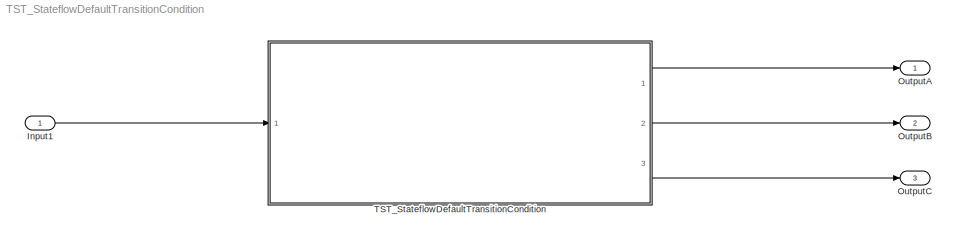
MODEL TST_StateflowDefaultTransitionCondition
KIND model
BLOCK [Inport] Input1
  BusOutputAsStruct = on
  IconDisplay = Port number
  OutDataTypeStr = uint32
  SID = 23
BLOCK [Outport] OutputA
  IconDisplay = Port number
  OutDataTypeStr = double
  PortDimensions = 1
  SID = 25
BLOCK [Outport] OutputB
  IconDisplay = Port number
  OutDataTypeStr = double
  Port = 2
  PortDimensions = 1
  SID = 32
BLOCK [Outport] OutputC
  IconDisplay = Port number
  OutDataTypeStr = double
  Port = 3
  PortDimensions = 1
  SID = 37
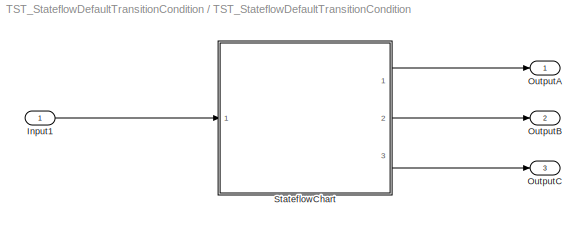
BLOCK [SubSystem] TST_StateflowDefaultTransitionCondition
  Ports = [1, 3]
  RequestExecContextInheritance = off
  SID = 2
  TreatAsAtomicUnit = on
BLOCK [Inport] TST_StateflowDefaultTransitionCondition/Input1
  BusOutputAsStruct = on
  IconDisplay = Port number
  OutDataTypeStr = uint32
  SID = 39
BLOCK [Outport] TST_StateflowDefaultTransitionCondition/OutputA
  IconDisplay = Port number
  OutDataTypeStr = double
  PortDimensions = 1
  SID = 40
BLOCK [Outport] TST_StateflowDefaultTransitionCondition/OutputB
  IconDisplay = Port number
  OutDataTypeStr = double
  Port = 2
  PortDimensions = 1
  SID = 41
BLOCK [Outport] TST_StateflowDefaultTransitionCondition/OutputC
  IconDisplay = Port number
  OutDataTypeStr = double
  Port = 3
  PortDimensions = 1
  SID = 42
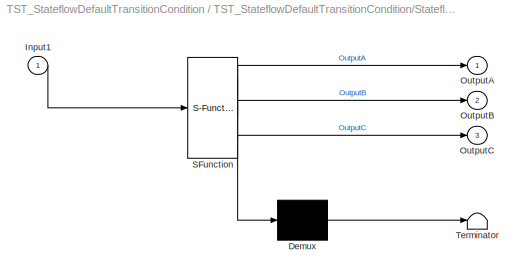
BLOCK [SubSystem] TST_StateflowDefaultTransitionCondition/StateflowChart
  ErrorFcn = Stateflow.Translate.translate
  PermitHierarchicalResolution = ExplicitOnly
  Ports = [1, 3]
  RequestExecContextInheritance = off
  SFBlockType = Chart
  SID = 43
  TreatAsAtomicUnit = on
BLOCK [Demux] TST_StateflowDefaultTransitionCondition/StateflowChart/ Demux 
  Outputs = 1
  Ports = [1, 1]
  SID = 43::14
BLOCK [S-Function] TST_StateflowDefaultTransitionCondition/StateflowChart/ SFunction 
  EnableBusSupport = off
  FunctionName = sf_sfun
  PortCounts = [1 4]
  Ports = [1, 4]
  SFcnIsStateOwnerBlock = off
  SFunctionDeploymentMode = off
  SID = 43::13
  Tag = Stateflow S-Function 1
BLOCK [Terminator] TST_StateflowDefaultTransitionCondition/StateflowChart/ Terminator 
  SID = 43::15
BLOCK [Inport] TST_StateflowDefaultTransitionCondition/StateflowChart/Input1
  IconDisplay = Port number
  SID = 43::9
BLOCK [Outport] TST_StateflowDefaultTransitionCondition/StateflowChart/OutputA
  IconDisplay = Port number
  SID = 43::10
BLOCK [Outport] TST_StateflowDefaultTransitionCondition/StateflowChart/OutputB
  IconDisplay = Port number
  Port = 2
  SID = 43::11
BLOCK [Outport] TST_StateflowDefaultTransitionCondition/StateflowChart/OutputC
  IconDisplay = Port number
  Port = 3
  SID = 43::12
LINE Input1:1 -> TST_StateflowDefaultTransitionCondition:1
LINE TST_StateflowDefaultTransitionCondition/Input1:1 -> TST_StateflowDefaultTransitionCondition/StateflowChart:1
LINE TST_StateflowDefaultTransitionCondition/StateflowChart/ Demux :1 -> TST_StateflowDefaultTransitionCondition/StateflowChart/ Terminator :1
LINE TST_StateflowDefaultTransitionCondition/StateflowChart/ SFunction :1 -> TST_StateflowDefaultTransitionCondition/StateflowChart/ Demux :1
LINE TST_StateflowDefaultTransitionCondition/StateflowChart/ SFunction :2 -> TST_StateflowDefaultTransitionCondition/StateflowChart/OutputA:1
LINE TST_StateflowDefaultTransitionCondition/StateflowChart/ SFunction :3 -> TST_StateflowDefaultTransitionCondition/StateflowChart/OutputB:1
LINE TST_StateflowDefaultTransitionCondition/StateflowChart/ SFunction :4 -> TST_StateflowDefaultTransitionCondition/StateflowChart/OutputC:1
LINE TST_StateflowDefaultTransitionCondition/StateflowChart/Input1:1 -> TST_StateflowDefaultTransitionCondition/StateflowChart/ SFunction :1
LINE TST_StateflowDefaultTransitionCondition/StateflowChart:1 -> TST_StateflowDefaultTransitionCondition/OutputA:1
LINE TST_StateflowDefaultTransitionCondition/StateflowChart:2 -> TST_StateflowDefaultTransitionCondition/OutputB:1
LINE TST_StateflowDefaultTransitionCondition/StateflowChart:3 -> TST_StateflowDefaultTransitionCondition/OutputC:1
LINE TST_StateflowDefaultTransitionCondition:1 -> OutputA:1
LINE TST_StateflowDefaultTransitionCondition:2 -> OutputB:1
LINE TST_StateflowDefaultTransitionCondition:3 -> OutputC:1
CHART TST_StateflowDefaultTransitionCondition/StateflowChart states=6 transitions=9
  STATE_LABEL 'StateA\\nentry:\\nOutputA = 10.0;'
  STATE_LABEL 'StateB\\nentry:\\nOutputB = 20.0;'
  STATE_LABEL 'ResultA = EvaluateConditionA(X)'
  STATE_LABEL 'ResultB = EvaluateConditionB(X)'
  STATE_LABEL 'Ping'
  STATE_LABEL 'Pong'
